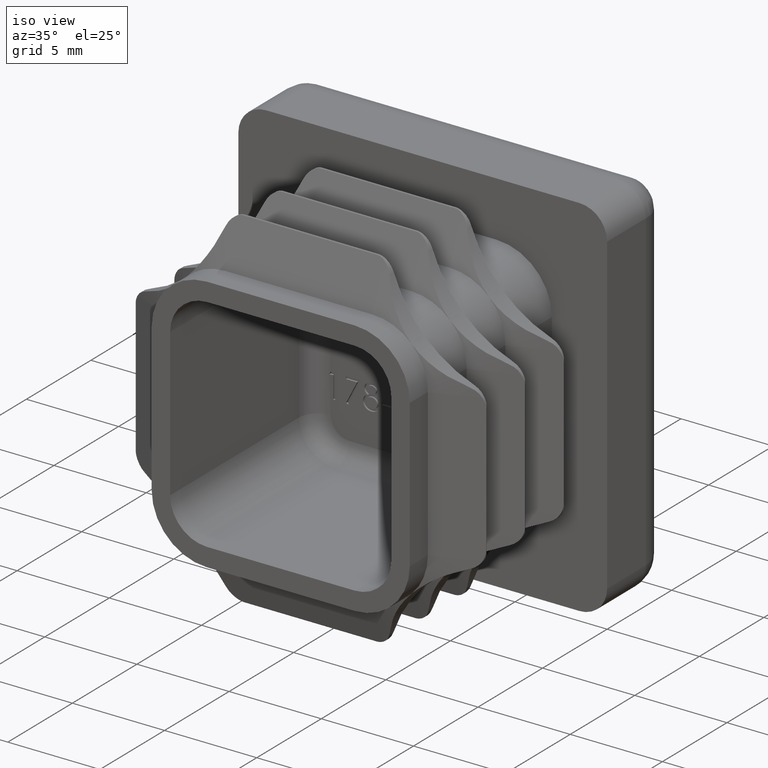
[diagram: clean part render]
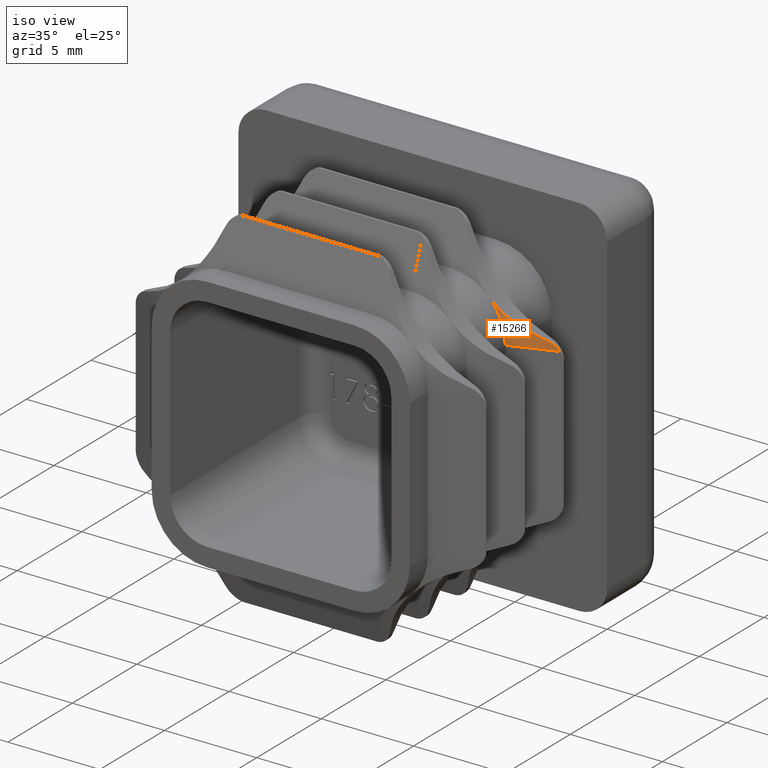
[diagram: same view with one face highlighted and labeled with its STEP entity id]
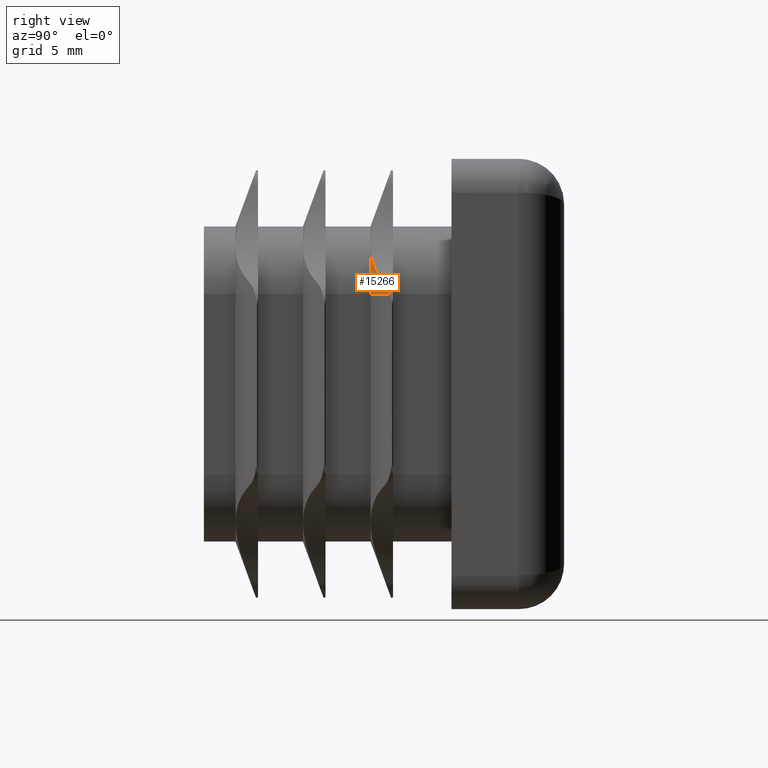
[diagram: same view with one face highlighted and labeled with its STEP entity id]
A machine part, iso view. The second image highlights one B-rep face of the part: STEP entity #15266.
A second angle (right view) of the same face is appended — the face is thin or edge-on in the first view.
In plain terms, the highlighted conical surface has half-angle 69.896 deg.
Its self-contained STEP definition (entity closure, byte-faithful):
#218 = CARTESIAN_POINT ( 'NONE',  ( 6.949236706462073698, -3.505707908590920407, 5.406664266205126523 ) ) ;
#389 = ORIENTED_EDGE ( 'NONE', *, *, #6354, .T. ) ;
#1134 = CONICAL_SURFACE ( 'NONE', #11578, 2.999999999999990674, 1.219919189529383496 ) ;
#1138 = DIRECTION ( 'NONE',  ( 0.000000000000000000, 0.000000000000000000, 1.000000000000000000 ) ) ;
#1601 = CARTESIAN_POINT ( 'NONE',  ( 9.239584269125396432, -2.780261037702972171, 4.211881318949351360 ) ) ;
#2420 = EDGE_CURVE ( 'NONE', #6495, #20222, #2663, .T. ) ;
#2663 = B_SPLINE_CURVE_WITH_KNOTS ( 'NONE', 3,
 ( #12428, #4833, #1601, #3226 ),
 .UNSPECIFIED., .F., .F.,
 ( 4, 4 ),
 ( 2.196513240812960220E-07, 0.0007379091437768323710 ),
 .UNSPECIFIED. ) ;
#2890 = ORIENTED_EDGE ( 'NONE', *, *, #2420, .F. ) ;
#3149 = CARTESIAN_POINT ( 'NONE',  ( 8.325792497765510447, -3.100930741989462724, 4.610621669019864477 ) ) ;
#3226 = CARTESIAN_POINT ( 'NONE',  ( 9.363396935132872301, -2.734942775849029672, 3.999999999999994671 ) ) ;
#3867 = FACE_OUTER_BOUND ( 'NONE', #8595, .T. ) ;
#4586 = CARTESIAN_POINT ( 'NONE',  ( 3.999999999999982681, -3.600000000000000089, 3.999999999999996447 ) ) ;
#4815 = CARTESIAN_POINT ( 'NONE',  ( 9.467186081712766210, -2.696953579153912539, 3.999999999999994671 ) ) ;
#4833 = CARTESIAN_POINT ( 'NONE',  ( 9.045269771246053025, -2.846854528735726308, 4.366439485128090325 ) ) ;
#5685 = EDGE_CURVE ( 'NONE', #17559, #20222, #16919, .T. ) ;
#6329 = CARTESIAN_POINT ( 'NONE',  ( 7.847343410461618873, -3.264750765852233894, 4.834916461457534176 ) ) ;
#6354 = EDGE_CURVE ( 'NONE', #10409, #17559, #10447, .T. ) ;
#6495 = VERTEX_POINT ( 'NONE', #17465 ) ;
#7427 = ORIENTED_EDGE ( 'NONE', *, *, #14267, .F. ) ;
#7653 = DIRECTION ( 'NONE',  ( 0.000000000000000000, 0.000000000000000000, 1.000000000000000000 ) ) ;
#8037 = CARTESIAN_POINT ( 'NONE',  ( 6.314162391842877753, -3.600000000000003197, 5.928478295276368826 ) ) ;
#8095 = CARTESIAN_POINT ( 'NONE',  ( 6.519408464712597606, -3.579993506682879634, 5.745905243733262502 ) ) ;
#8497 = VECTOR ( 'NONE', #17378, 1000.000000000000000 ) ;
#8595 = EDGE_LOOP ( 'NONE', ( #2890, #7427, #389, #11847 ) ) ;
#9781 = B_SPLINE_CURVE_WITH_KNOTS ( 'NONE', 3,
 ( #12810, #8037, #8095, #218, #11272, #6329, #3149, #15765 ),
 .UNSPECIFIED., .F., .F.,
 ( 4, 2, 2, 4 ),
 ( 0.003269723588848809544, 0.004083633120292199520, 0.004897542651735590363, 0.006525361714622370315 ),
 .UNSPECIFIED. ) ;
#10302 = CARTESIAN_POINT ( 'NONE',  ( 6.999999999999982236, -3.599999999999995648, 4.000000000000003553 ) ) ;
#10409 = VERTEX_POINT ( 'NONE', #18033 ) ;
#10447 = CIRCLE ( 'NONE', #13601, 2.999999999999990674 ) ;
#11272 = CARTESIAN_POINT ( 'NONE',  ( 7.169459828230923648, -3.452797768405224677, 5.253168636700124239 ) ) ;
#11578 = AXIS2_PLACEMENT_3D ( 'NONE', #17057, #18878, #7653 ) ;
#11847 = ORIENTED_EDGE ( 'NONE', *, *, #5685, .T. ) ;
#12296 = DIRECTION ( 'NONE',  ( 0.000000000000000000, 1.000000000000000000, 0.000000000000000000 ) ) ;
#12428 = CARTESIAN_POINT ( 'NONE',  ( 8.821383476483250163, -2.925917737636765548, 4.442423878817345795 ) ) ;
#12810 = CARTESIAN_POINT ( 'NONE',  ( 6.121320343559598420, -3.600000000000002309, 6.121320343559641941 ) ) ;
#12829 = CARTESIAN_POINT ( 'NONE',  ( 9.363396935132872301, -2.734942775849029672, 3.999999999999994671 ) ) ;
#13601 = AXIS2_PLACEMENT_3D ( 'NONE', #4586, #12296, #1138 ) ;
#14267 = EDGE_CURVE ( 'NONE', #10409, #6495, #9781, .T. ) ;
#15266 = ADVANCED_FACE ( 'NONE', ( #3867 ), #1134, .T. ) ;
#15765 = CARTESIAN_POINT ( 'NONE',  ( 8.821383476483250163, -2.925917737636765548, 4.442423878817345795 ) ) ;
#16919 = LINE ( 'NONE', #4815, #8497 ) ;
#17057 = CARTESIAN_POINT ( 'NONE',  ( 3.999999999999982681, -3.600000000000000089, 3.999999999999996447 ) ) ;
#17378 = DIRECTION ( 'NONE',  ( 0.9390715830782973006, 0.3437216342548437553, 0.000000000000000000 ) ) ;
#17465 = CARTESIAN_POINT ( 'NONE',  ( 8.821383476483250163, -2.925917737636765548, 4.442423878817345795 ) ) ;
#17559 = VERTEX_POINT ( 'NONE', #10302 ) ;
#18033 = CARTESIAN_POINT ( 'NONE',  ( 6.121320343559598420, -3.600000000000002309, 6.121320343559641941 ) ) ;
#18878 = DIRECTION ( 'NONE',  ( 0.000000000000000000, 1.000000000000000000, 0.000000000000000000 ) ) ;
#20222 = VERTEX_POINT ( 'NONE', #12829 ) ;